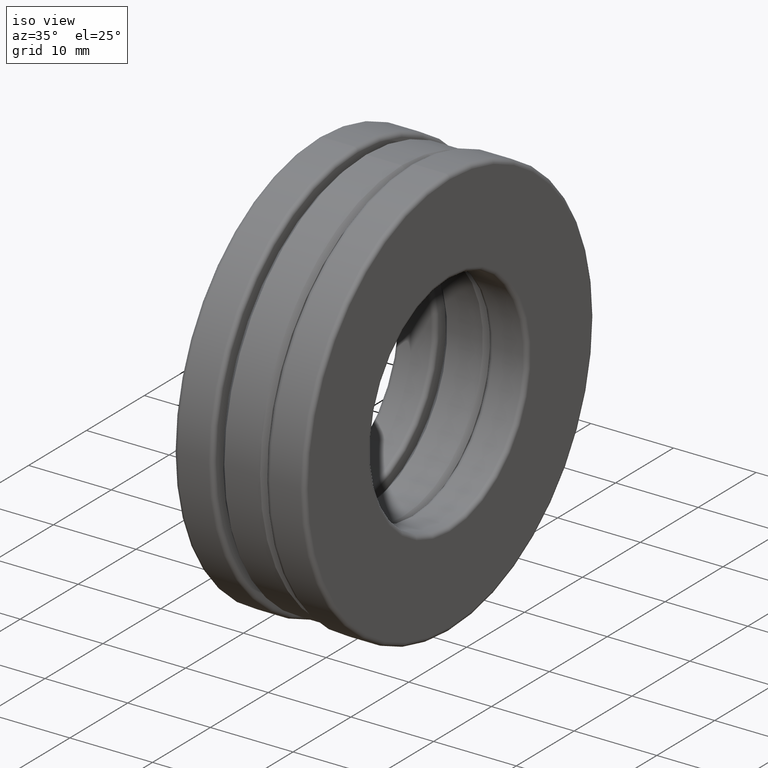
[diagram: clean part render]
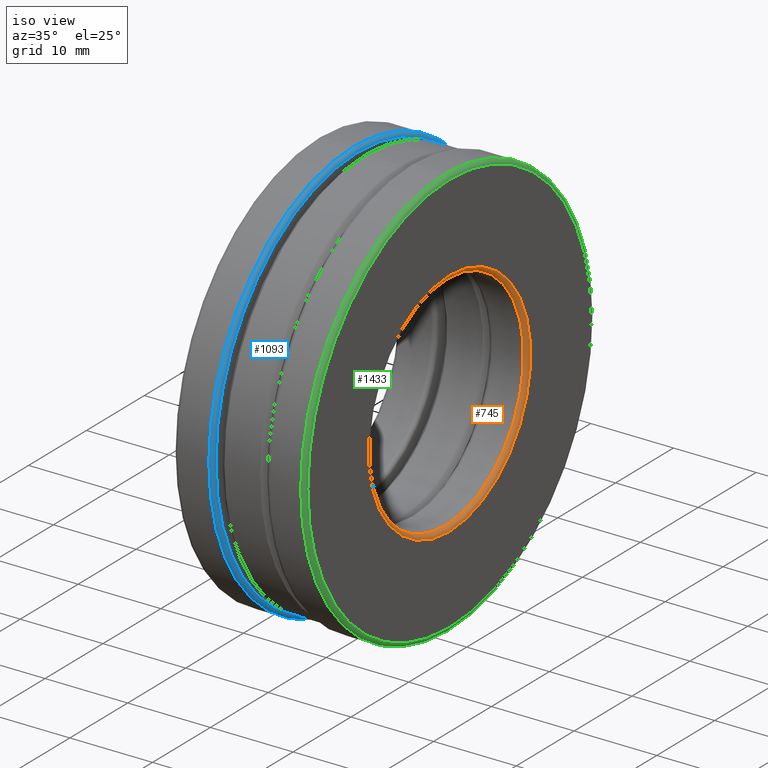
[diagram: same view with three faces highlighted in distinct colors, each labeled with its STEP entity id]
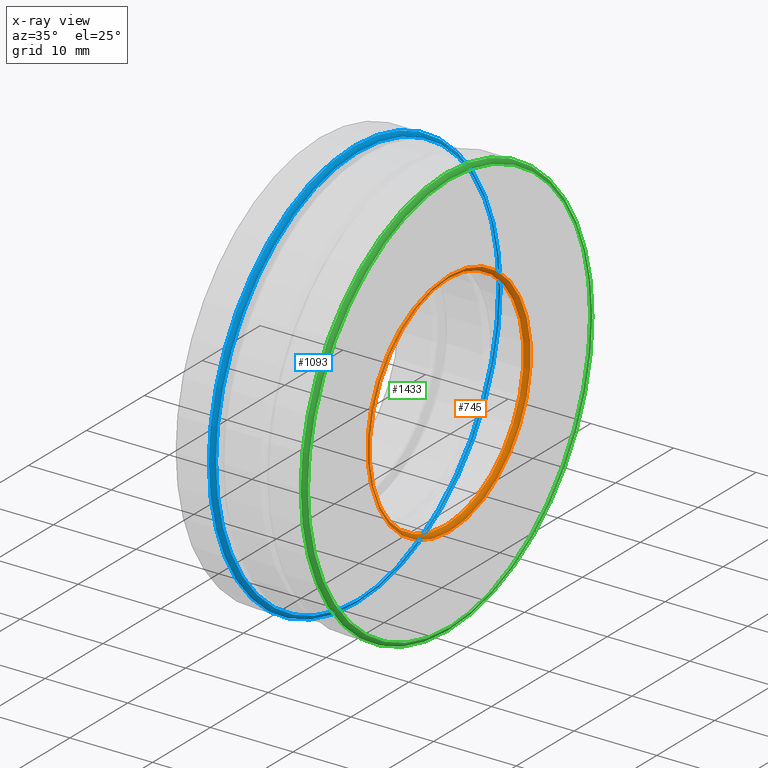
[diagram: x-ray of the same camera — body ghosted, the three highlighted faces saturated]
A machine part, iso view with three faces highlighted in distinct colors.
The next image is the same camera in x-ray (body ghosted, the three faces saturated) — at least one of them is partly hidden behind the body in this view.
Their STEP definitions:

[orange] entity #745 — the highlighted toroidal blend (fillet) surface has major radius 14.0017 mm and minor (blend) radius 0.508 mm.
#4 = DIRECTION ( 'NONE',  ( -1.000000000000000000, -0.0000000000000000000, -0.0000000000000000000 ) ) ;
#164 = TOROIDAL_SURFACE ( 'NONE', #843, 0.5512499999999999100, 0.01999999999999995900 ) ;
#179 = FACE_OUTER_BOUND ( 'NONE', #291, .T. ) ;
#193 = AXIS2_PLACEMENT_3D ( 'NONE', #378, #588, #594 ) ;
#203 = AXIS2_PLACEMENT_3D ( 'NONE', #1364, #4, #1367 ) ;
#273 = EDGE_CURVE ( 'NONE', #768, #768, #577, .T. ) ;
#291 = EDGE_LOOP ( 'NONE', ( #693 ) ) ;
#322 = FACE_OUTER_BOUND ( 'NONE', #917, .T. ) ;
#357 = VERTEX_POINT ( 'NONE', #1247 ) ;
#378 = CARTESIAN_POINT ( 'NONE',  ( 0.2925000000000000400, 0.0000000000000000000, 0.0000000000000000000 ) ) ;
#441 = CARTESIAN_POINT ( 'NONE',  ( 0.2925000000000000400, 0.0000000000000000000, 0.5312500000000000000 ) ) ;
#577 = CIRCLE ( 'NONE', #193, 0.5312500000000000000 ) ;
#588 = DIRECTION ( 'NONE',  ( -1.000000000000000000, -0.0000000000000000000, -0.0000000000000000000 ) ) ;
#594 = DIRECTION ( 'NONE',  ( 0.0000000000000000000, 0.0000000000000000000, 1.000000000000000000 ) ) ;
#602 = CARTESIAN_POINT ( 'NONE',  ( 0.2925000000000000400, 0.0000000000000000000, 0.0000000000000000000 ) ) ;
#693 = ORIENTED_EDGE ( 'NONE', *, *, #273, .T. ) ;
#710 = ORIENTED_EDGE ( 'NONE', *, *, #1472, .F. ) ;
#745 = ADVANCED_FACE ( 'NONE', ( #322, #179 ), #164, .T. ) ;
#768 = VERTEX_POINT ( 'NONE', #441 ) ;
#843 = AXIS2_PLACEMENT_3D ( 'NONE', #602, #1411, #1151 ) ;
#917 = EDGE_LOOP ( 'NONE', ( #710 ) ) ;
#1116 = CIRCLE ( 'NONE', #203, 0.5512499999999999100 ) ;
#1151 = DIRECTION ( 'NONE',  ( 0.0000000000000000000, 0.0000000000000000000, 1.000000000000000000 ) ) ;
#1247 = CARTESIAN_POINT ( 'NONE',  ( 0.3125000000000000000, 0.0000000000000000000, 0.5512499999999999100 ) ) ;
#1364 = CARTESIAN_POINT ( 'NONE',  ( 0.3125000000000000000, 0.0000000000000000000, 0.0000000000000000000 ) ) ;
#1367 = DIRECTION ( 'NONE',  ( 0.0000000000000000000, 0.0000000000000000000, 1.000000000000000000 ) ) ;
#1411 = DIRECTION ( 'NONE',  ( -1.000000000000000000, -0.0000000000000000000, -0.0000000000000000000 ) ) ;
#1472 = EDGE_CURVE ( 'NONE', #357, #357, #1116, .T. ) ;

[blue] entity #1093 — the highlighted toroidal blend (fillet) surface has major radius 24.4951 mm and minor (blend) radius 0.508 mm.
#58 = VERTEX_POINT ( 'NONE', #660 ) ;
#59 = DIRECTION ( 'NONE',  ( 0.0000000000000000000, 0.0000000000000000000, 1.000000000000000000 ) ) ;
#140 = EDGE_CURVE ( 'NONE', #58, #58, #324, .T. ) ;
#246 = EDGE_CURVE ( 'NONE', #1000, #1000, #737, .T. ) ;
#270 = FACE_OUTER_BOUND ( 'NONE', #1179, .T. ) ;
#324 = CIRCLE ( 'NONE', #339, 0.9843749999999997800 ) ;
#339 = AXIS2_PLACEMENT_3D ( 'NONE', #568, #1141, #444 ) ;
#392 = AXIS2_PLACEMENT_3D ( 'NONE', #1340, #876, #945 ) ;
#427 = CARTESIAN_POINT ( 'NONE',  ( -0.1250000000000000600, 0.0000000000000000000, 0.9643749999999998700 ) ) ;
#444 = DIRECTION ( 'NONE',  ( 0.0000000000000000000, 0.0000000000000000000, 1.000000000000000000 ) ) ;
#479 = DIRECTION ( 'NONE',  ( -1.000000000000000000, -0.0000000000000000000, -0.0000000000000000000 ) ) ;
#522 = EDGE_LOOP ( 'NONE', ( #1414 ) ) ;
#568 = CARTESIAN_POINT ( 'NONE',  ( -0.1449999999999999900, 0.0000000000000000000, 0.0000000000000000000 ) ) ;
#660 = CARTESIAN_POINT ( 'NONE',  ( -0.1449999999999999900, 0.0000000000000000000, 0.9843749999999997800 ) ) ;
#704 = FACE_OUTER_BOUND ( 'NONE', #522, .T. ) ;
#737 = CIRCLE ( 'NONE', #1216, 0.9643749999999998700 ) ;
#876 = DIRECTION ( 'NONE',  ( -1.000000000000000000, -0.0000000000000000000, -0.0000000000000000000 ) ) ;
#945 = DIRECTION ( 'NONE',  ( 0.0000000000000000000, 0.0000000000000000000, 1.000000000000000000 ) ) ;
#1000 = VERTEX_POINT ( 'NONE', #427 ) ;
#1093 = ADVANCED_FACE ( 'NONE', ( #704, #270 ), #1454, .T. ) ;
#1141 = DIRECTION ( 'NONE',  ( -1.000000000000000000, -0.0000000000000000000, -0.0000000000000000000 ) ) ;
#1170 = CARTESIAN_POINT ( 'NONE',  ( -0.1250000000000000600, 0.0000000000000000000, 0.0000000000000000000 ) ) ;
#1179 = EDGE_LOOP ( 'NONE', ( #1397 ) ) ;
#1216 = AXIS2_PLACEMENT_3D ( 'NONE', #1170, #479, #59 ) ;
#1340 = CARTESIAN_POINT ( 'NONE',  ( -0.1449999999999999900, 0.0000000000000000000, 0.0000000000000000000 ) ) ;
#1397 = ORIENTED_EDGE ( 'NONE', *, *, #246, .T. ) ;
#1414 = ORIENTED_EDGE ( 'NONE', *, *, #140, .F. ) ;
#1454 = TOROIDAL_SURFACE ( 'NONE', #392, 0.9643749999999998700, 0.01999999999999993100 ) ;

[green] entity #1433 — the highlighted toroidal blend (fillet) surface has major radius 24.4951 mm and minor (blend) radius 0.508 mm.
#48 = CIRCLE ( 'NONE', #824, 0.9643749999999999800 ) ;
#67 = ORIENTED_EDGE ( 'NONE', *, *, #1232, .F. ) ;
#100 = DIRECTION ( 'NONE',  ( 0.0000000000000000000, 0.0000000000000000000, 1.000000000000000000 ) ) ;
#128 = CARTESIAN_POINT ( 'NONE',  ( 0.3125000000000000000, 0.0000000000000000000, 0.0000000000000000000 ) ) ;
#149 = DIRECTION ( 'NONE',  ( 0.0000000000000000000, 0.0000000000000000000, 1.000000000000000000 ) ) ;
#173 = EDGE_CURVE ( 'NONE', #286, #286, #48, .T. ) ;
#178 = TOROIDAL_SURFACE ( 'NONE', #238, 0.9643749999999999800, 0.02000000000000000700 ) ;
#211 = EDGE_LOOP ( 'NONE', ( #1105 ) ) ;
#230 = CARTESIAN_POINT ( 'NONE',  ( 0.3125000000000000000, 0.0000000000000000000, 0.9643749999999999800 ) ) ;
#238 = AXIS2_PLACEMENT_3D ( 'NONE', #555, #997, #333 ) ;
#286 = VERTEX_POINT ( 'NONE', #230 ) ;
#333 = DIRECTION ( 'NONE',  ( 0.0000000000000000000, 0.0000000000000000000, 1.000000000000000000 ) ) ;
#555 = CARTESIAN_POINT ( 'NONE',  ( 0.2925000000000000400, 0.0000000000000000000, 0.0000000000000000000 ) ) ;
#565 = CARTESIAN_POINT ( 'NONE',  ( 0.2925000000000000400, 0.0000000000000000000, 0.9843750000000001100 ) ) ;
#581 = DIRECTION ( 'NONE',  ( -1.000000000000000000, -0.0000000000000000000, -0.0000000000000000000 ) ) ;
#592 = CIRCLE ( 'NONE', #1324, 0.9843750000000001100 ) ;
#669 = DIRECTION ( 'NONE',  ( -1.000000000000000000, -0.0000000000000000000, -0.0000000000000000000 ) ) ;
#766 = CARTESIAN_POINT ( 'NONE',  ( 0.2925000000000000400, 0.0000000000000000000, 0.0000000000000000000 ) ) ;
#824 = AXIS2_PLACEMENT_3D ( 'NONE', #128, #581, #149 ) ;
#941 = EDGE_LOOP ( 'NONE', ( #67 ) ) ;
#997 = DIRECTION ( 'NONE',  ( -1.000000000000000000, -0.0000000000000000000, -0.0000000000000000000 ) ) ;
#1045 = VERTEX_POINT ( 'NONE', #565 ) ;
#1047 = FACE_OUTER_BOUND ( 'NONE', #211, .T. ) ;
#1105 = ORIENTED_EDGE ( 'NONE', *, *, #173, .T. ) ;
#1232 = EDGE_CURVE ( 'NONE', #1045, #1045, #592, .T. ) ;
#1324 = AXIS2_PLACEMENT_3D ( 'NONE', #766, #669, #100 ) ;
#1404 = FACE_OUTER_BOUND ( 'NONE', #941, .T. ) ;
#1433 = ADVANCED_FACE ( 'NONE', ( #1404, #1047 ), #178, .T. ) ;